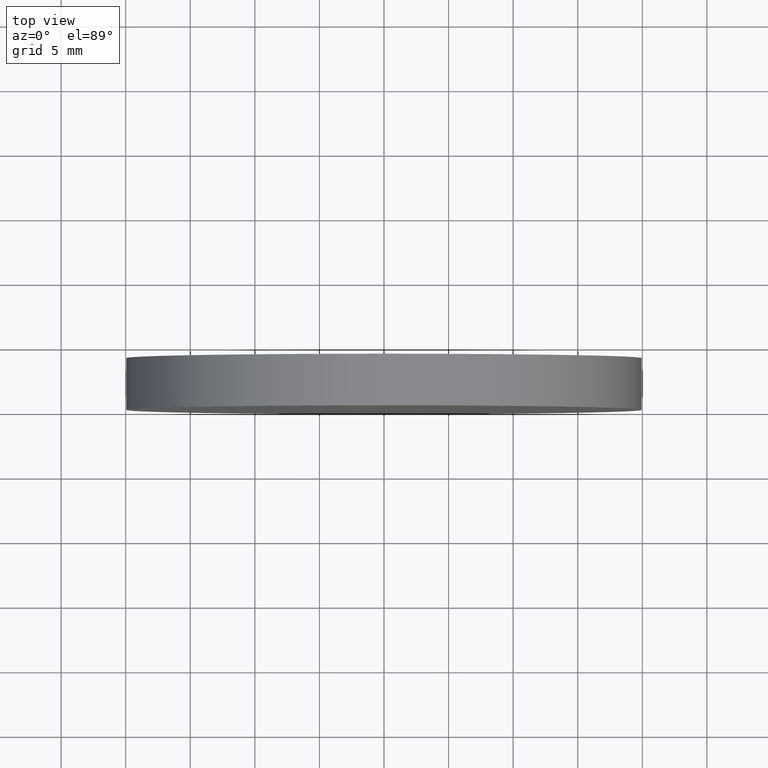
[diagram: clean part render]
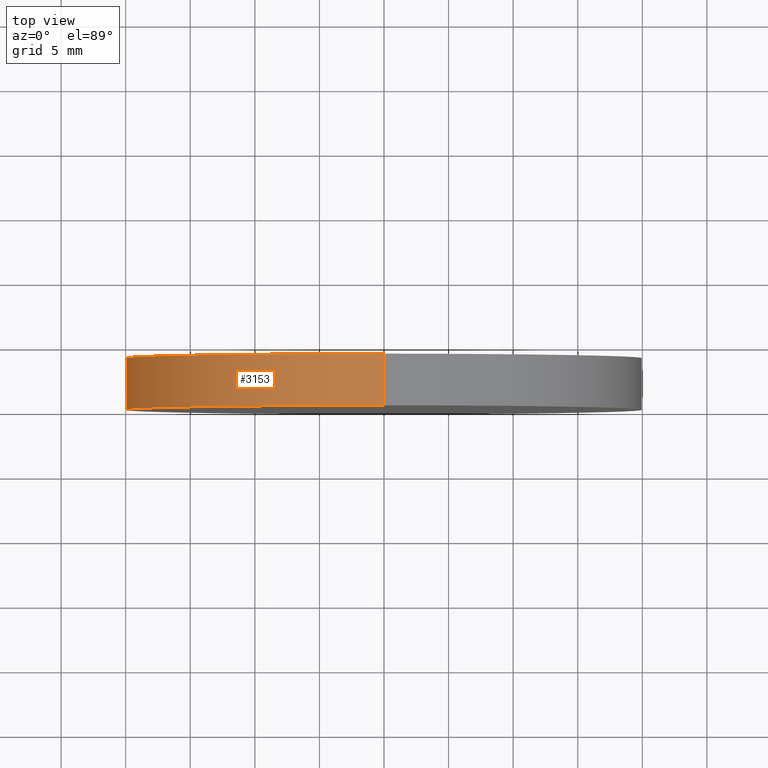
[diagram: same view with one face highlighted and labeled with its STEP entity id]
A machine part, top view. The second image highlights one B-rep face of the part: STEP entity #3153.
In plain terms, the highlighted cylindrical surface (partial cylindrical patch) has radius 20 mm, axis along (-0, -1, -0).
Its self-contained STEP definition (entity closure, byte-faithful):
#163 = CARTESIAN_POINT ( 'NONE',  ( 0.0000000000000000000, 4.000000000000000000, 0.0000000000000000000 ) ) ;
#305 = EDGE_CURVE ( 'NONE', #1000, #3887, #11861, .T. ) ;
#599 = DIRECTION ( 'NONE',  ( -0.0000000000000000000, -1.000000000000000000, -0.0000000000000000000 ) ) ;
#821 = DIRECTION ( 'NONE',  ( -0.0000000000000000000, -1.000000000000000000, -0.0000000000000000000 ) ) ;
#1000 = VERTEX_POINT ( 'NONE', #5462 ) ;
#1454 = CARTESIAN_POINT ( 'NONE',  ( 2.449293598294706500E-015, 4.000000000000000000, 20.00000000000000000 ) ) ;
#1522 = VECTOR ( 'NONE', #821, 1000.000000000000000 ) ;
#2119 = EDGE_CURVE ( 'NONE', #12238, #3887, #12174, .T. ) ;
#2252 = ORIENTED_EDGE ( 'NONE', *, *, #6700, .F. ) ;
#2343 = AXIS2_PLACEMENT_3D ( 'NONE', #8610, #10385, #2959 ) ;
#2514 = ORIENTED_EDGE ( 'NONE', *, *, #2119, .F. ) ;
#2856 = CARTESIAN_POINT ( 'NONE',  ( 2.449293598294706500E-015, 0.0000000000000000000, 20.00000000000000000 ) ) ;
#2959 = DIRECTION ( 'NONE',  ( 0.0000000000000000000, 0.0000000000000000000, 1.000000000000000000 ) ) ;
#3153 = ADVANCED_FACE ( 'NONE', ( #7090 ), #7717, .T. ) ;
#3489 = DIRECTION ( 'NONE',  ( -0.0000000000000000000, -1.000000000000000000, -0.0000000000000000000 ) ) ;
#3785 = LINE ( 'NONE', #5335, #1522 ) ;
#3887 = VERTEX_POINT ( 'NONE', #2856 ) ;
#4122 = CIRCLE ( 'NONE', #5232, 20.00000000000000000 ) ;
#5094 = CARTESIAN_POINT ( 'NONE',  ( 0.0000000000000000000, 4.000000000000000000, -20.00000000000000000 ) ) ;
#5232 = AXIS2_PLACEMENT_3D ( 'NONE', #163, #6898, #6782 ) ;
#5335 = CARTESIAN_POINT ( 'NONE',  ( 0.0000000000000000000, 4.000000000000000000, -20.00000000000000000 ) ) ;
#5462 = CARTESIAN_POINT ( 'NONE',  ( 0.0000000000000000000, 0.0000000000000000000, -20.00000000000000000 ) ) ;
#6092 = ORIENTED_EDGE ( 'NONE', *, *, #10296, .T. ) ;
#6233 = EDGE_LOOP ( 'NONE', ( #2514, #2252, #6092, #9116 ) ) ;
#6310 = AXIS2_PLACEMENT_3D ( 'NONE', #10117, #599, #7221 ) ;
#6700 = EDGE_CURVE ( 'NONE', #7281, #12238, #4122, .T. ) ;
#6782 = DIRECTION ( 'NONE',  ( 0.0000000000000000000, 0.0000000000000000000, 1.000000000000000000 ) ) ;
#6898 = DIRECTION ( 'NONE',  ( 0.0000000000000000000, 1.000000000000000000, 0.0000000000000000000 ) ) ;
#7090 = FACE_OUTER_BOUND ( 'NONE', #6233, .T. ) ;
#7109 = VECTOR ( 'NONE', #3489, 1000.000000000000000 ) ;
#7221 = DIRECTION ( 'NONE',  ( 0.0000000000000000000, 0.0000000000000000000, -1.000000000000000000 ) ) ;
#7281 = VERTEX_POINT ( 'NONE', #5094 ) ;
#7717 = CYLINDRICAL_SURFACE ( 'NONE', #6310, 20.00000000000000000 ) ;
#8610 = CARTESIAN_POINT ( 'NONE',  ( 0.0000000000000000000, 0.0000000000000000000, 0.0000000000000000000 ) ) ;
#9116 = ORIENTED_EDGE ( 'NONE', *, *, #305, .T. ) ;
#10117 = CARTESIAN_POINT ( 'NONE',  ( 0.0000000000000000000, 4.000000000000000000, 0.0000000000000000000 ) ) ;
#10296 = EDGE_CURVE ( 'NONE', #7281, #1000, #3785, .T. ) ;
#10385 = DIRECTION ( 'NONE',  ( 0.0000000000000000000, 1.000000000000000000, 0.0000000000000000000 ) ) ;
#10959 = CARTESIAN_POINT ( 'NONE',  ( 2.449293598294706500E-015, 4.000000000000000000, 20.00000000000000000 ) ) ;
#11861 = CIRCLE ( 'NONE', #2343, 20.00000000000000000 ) ;
#12174 = LINE ( 'NONE', #10959, #7109 ) ;
#12238 = VERTEX_POINT ( 'NONE', #1454 ) ;